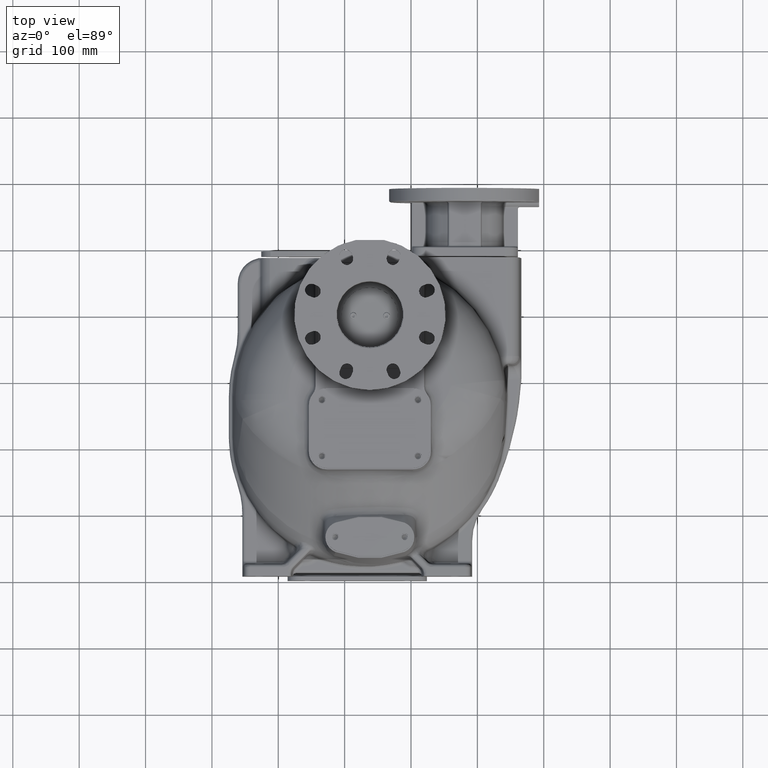
[diagram: clean part render]
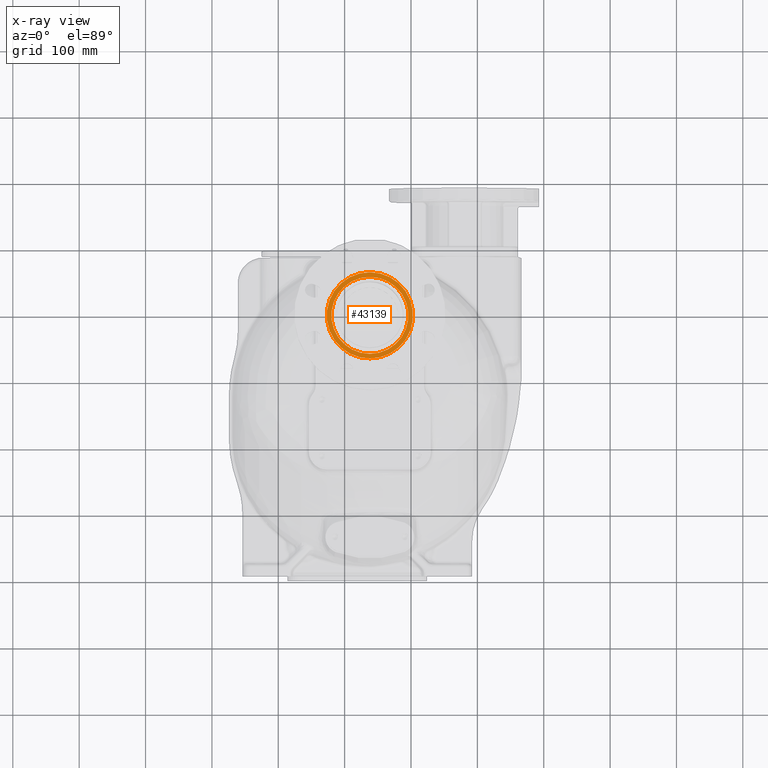
[diagram: x-ray — body ghosted, one internal face saturated and labeled with its STEP entity id]
A machine part, top view, then the same camera in x-ray: the body is ghosted and one INTERNAL B-rep face — a face not visible from any outside direction — is saturated and labeled: STEP entity #43139.
In plain terms, the highlighted planar face has unit normal (0, 0, 1).
Its self-contained STEP definition (entity closure, byte-faithful):
#10645=CARTESIAN_POINT('',(3.8E1,3.9E2,1.8E2));
#10646=DIRECTION('',(0.E0,0.E0,1.E0));
#10647=DIRECTION('',(0.E0,1.E0,0.E0));
#10648=AXIS2_PLACEMENT_3D('',#10645,#10646,#10647);
#10784=CARTESIAN_POINT('',(3.8E1,3.9E2,1.8E2));
#10785=DIRECTION('',(0.E0,0.E0,-1.E0));
#10786=DIRECTION('',(0.E0,1.E0,0.E0));
#10787=AXIS2_PLACEMENT_3D('',#10784,#10785,#10786);
#10793=CARTESIAN_POINT('',(3.8E1,3.9E2,1.8E2));
#10794=DIRECTION('',(0.E0,0.E0,1.E0));
#10795=DIRECTION('',(0.E0,1.E0,0.E0));
#10796=AXIS2_PLACEMENT_3D('',#10793,#10794,#10795);
#10798=CARTESIAN_POINT('',(3.8E1,3.9E2,1.8E2));
#10799=DIRECTION('',(0.E0,0.E0,-1.E0));
#10800=DIRECTION('',(0.E0,1.E0,0.E0));
#10801=AXIS2_PLACEMENT_3D('',#10798,#10799,#10800);
#18427=CARTESIAN_POINT('',(3.8E1,4.55E2,1.8E2));
#18428=CARTESIAN_POINT('',(3.8E1,3.25E2,1.8E2));
#18429=VERTEX_POINT('',#18427);
#18430=VERTEX_POINT('',#18428);
#18431=CARTESIAN_POINT('',(3.8E1,4.48E2,1.8E2));
#18432=CARTESIAN_POINT('',(3.8E1,3.32E2,1.8E2));
#18433=VERTEX_POINT('',#18431);
#18434=VERTEX_POINT('',#18432);
#43124=CARTESIAN_POINT('',(3.8E1,3.9E2,1.8E2));
#43125=DIRECTION('',(0.E0,0.E0,1.E0));
#43126=DIRECTION('',(0.E0,1.E0,0.E0));
#43127=AXIS2_PLACEMENT_3D('',#43124,#43125,#43126);
#43128=PLANE('',#43127);
#43130=ORIENTED_EDGE('',*,*,#43129,.T.);
#43132=ORIENTED_EDGE('',*,*,#43131,.F.);
#43133=EDGE_LOOP('',(#43130,#43132));
#43134=FACE_OUTER_BOUND('',#43133,.F.);
#43135=ORIENTED_EDGE('',*,*,#43115,.T.);
#43136=ORIENTED_EDGE('',*,*,#42839,.F.);
#43137=EDGE_LOOP('',(#43135,#43136));
#43138=FACE_BOUND('',#43137,.F.);
#43139=ADVANCED_FACE('',(#43134,#43138),#43128,.F.);
#10649=CIRCLE('',#10648,5.8E1);
#10788=CIRCLE('',#10787,5.8E1);
#10797=CIRCLE('',#10796,6.5E1);
#10802=CIRCLE('',#10801,6.5E1);
#42839=EDGE_CURVE('',#18433,#18434,#10649,.T.);
#43115=EDGE_CURVE('',#18433,#18434,#10788,.T.);
#43129=EDGE_CURVE('',#18429,#18430,#10797,.T.);
#43131=EDGE_CURVE('',#18429,#18430,#10802,.T.);